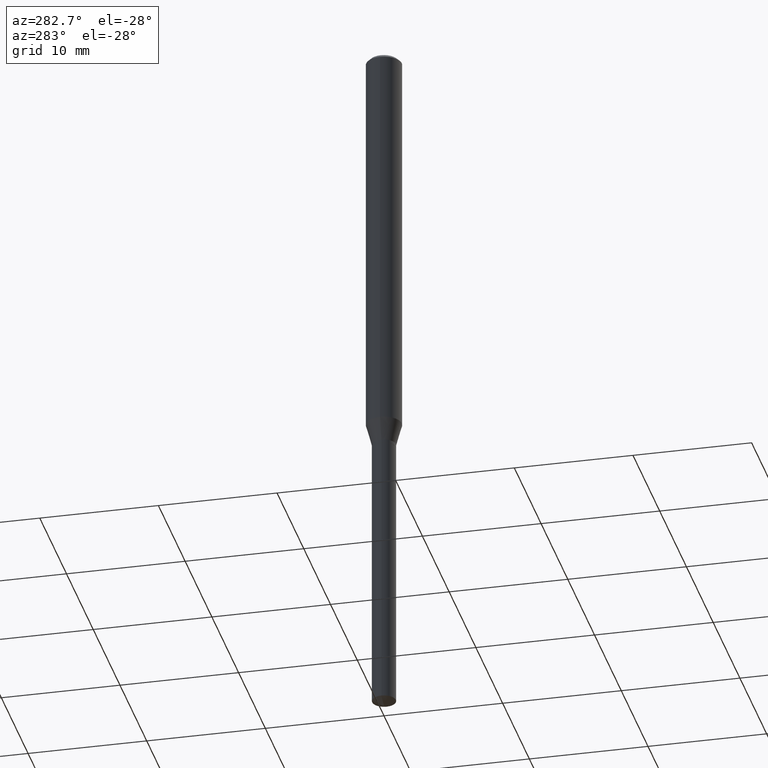
[diagram: clean part render]
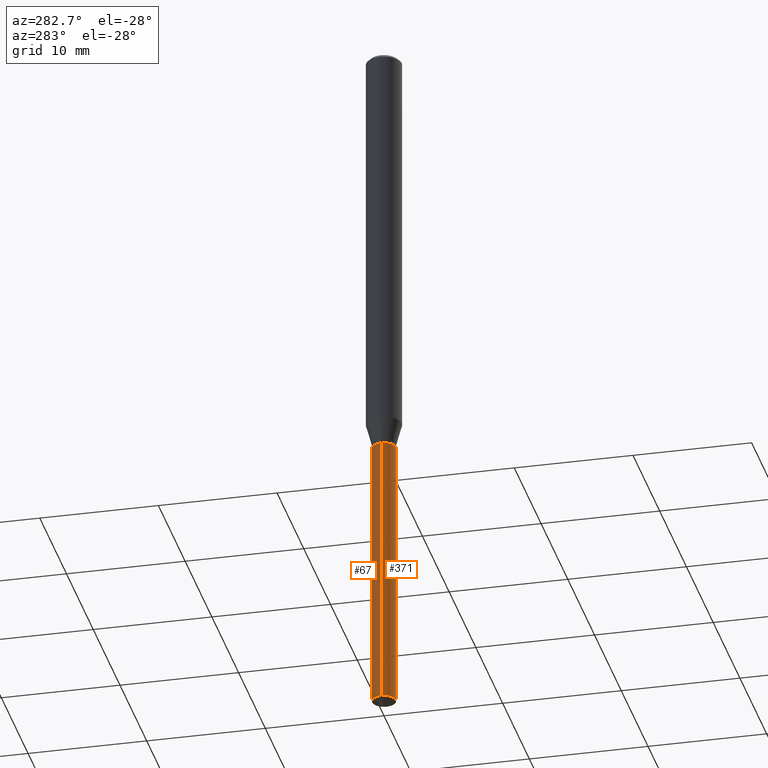
[diagram: same view with one multi-face feature highlighted, each face labeled with its STEP entity id]
A machine part, auxiliary view. The highlighted faces form ONE feature: a constant-radius fillet chain: 2 tangent blend faces with common blend radius 0.9995 mm. The faces share edges in the B-rep.
Their STEP definitions:
[1] entity #67 (Cylinder):
#4 = CARTESIAN_POINT ( 'NONE',  ( 3.465473845244957311E-29, -4.947778205274621841E-15, -1.417100000000000026 ) ) ;
#23 = AXIS2_PLACEMENT_3D ( 'NONE', #253, #64, #325 ) ;
#31 = EDGE_LOOP ( 'NONE', ( #66, #293, #342, #406 ) ) ;
#36 = AXIS2_PLACEMENT_3D ( 'NONE', #4, #337, #305 ) ;
#60 = CARTESIAN_POINT ( 'NONE',  ( 5.731324908466029700E-29, -8.182813010799494343E-15, -2.343650793651601560 ) ) ;
#64 = DIRECTION ( 'NONE',  ( -2.445468806185136597E-29, 3.491481338843145583E-15, 1.000000000000000000 ) ) ;
#66 = ORIENTED_EDGE ( 'NONE', *, *, #473, .T. ) ;
#67 = ADVANCED_FACE ( 'NONE', ( #75 ), #196, .T. ) ;
#71 = CIRCLE ( 'NONE', #359, 0.03935000000000000303 ) ;
#75 = FACE_OUTER_BOUND ( 'NONE', #31, .T. ) ;
#96 = DIRECTION ( 'NONE',  ( -2.445468806185136597E-29, 3.491481338843145583E-15, 1.000000000000000000 ) ) ;
#103 = EDGE_CURVE ( 'NONE', #380, #443, #229, .T. ) ;
#143 = VERTEX_POINT ( 'NONE', #425 ) ;
#175 = DIRECTION ( 'NONE',  ( -2.445468806185136877E-29, 3.491481338843145188E-15, 1.000000000000000000 ) ) ;
#187 = CARTESIAN_POINT ( 'NONE',  ( -0.03935000000000000303, -4.668179638753022446E-15, -1.417100000000000026 ) ) ;
#196 = CYLINDRICAL_SURFACE ( 'NONE', #36, 0.03935000000000000303 ) ;
#229 = CIRCLE ( 'NONE', #23, 0.03935000000000000303 ) ;
#235 = CARTESIAN_POINT ( 'NONE',  ( -0.03935000000000000303, -6.285697041515458697E-15, -1.417100000000000026 ) ) ;
#247 = DIRECTION ( 'NONE',  ( 1.000000000000000000, -6.982962677686269077E-15, 0.000000000000000000 ) ) ;
#253 = CARTESIAN_POINT ( 'NONE',  ( 3.465473845244957311E-29, -4.947778205274621841E-15, -1.417100000000000026 ) ) ;
#265 = VECTOR ( 'NONE', #175, 39.37007874015748143 ) ;
#272 = EDGE_CURVE ( 'NONE', #143, #443, #373, .T. ) ;
#293 = ORIENTED_EDGE ( 'NONE', *, *, #272, .T. ) ;
#305 = DIRECTION ( 'NONE',  ( 1.000000000000000000, -6.982962677686269077E-15, 0.000000000000000000 ) ) ;
#307 = DIRECTION ( 'NONE',  ( -2.445468806185136877E-29, 3.491481338843145188E-15, 1.000000000000000000 ) ) ;
#316 = CARTESIAN_POINT ( 'NONE',  ( 0.03935000000000000303, -5.222557786641576758E-15, -1.417100000000000026 ) ) ;
#320 = VECTOR ( 'NONE', #307, 39.37007874015748143 ) ;
#321 = CARTESIAN_POINT ( 'NONE',  ( 0.03935000000000000997, -8.457592592166449260E-15, -2.343650793651601560 ) ) ;
#325 = DIRECTION ( 'NONE',  ( 1.000000000000000000, -6.982962677686269077E-15, 0.000000000000000000 ) ) ;
#337 = DIRECTION ( 'NONE',  ( -2.445468806185136597E-29, 3.491481338843145583E-15, 1.000000000000000000 ) ) ;
#342 = ORIENTED_EDGE ( 'NONE', *, *, #103, .F. ) ;
#359 = AXIS2_PLACEMENT_3D ( 'NONE', #60, #96, #247 ) ;
#361 = LINE ( 'NONE', #400, #265 ) ;
#373 = LINE ( 'NONE', #187, #320 ) ;
#380 = VERTEX_POINT ( 'NONE', #316 ) ;
#400 = CARTESIAN_POINT ( 'NONE',  ( 0.03935000000000000303, -5.222557786641576758E-15, -1.417100000000000026 ) ) ;
#406 = ORIENTED_EDGE ( 'NONE', *, *, #477, .F. ) ;
#416 = VERTEX_POINT ( 'NONE', #321 ) ;
#425 = CARTESIAN_POINT ( 'NONE',  ( -0.03935000000000000997, -7.903214444277894948E-15, -2.343650793651601560 ) ) ;
#443 = VERTEX_POINT ( 'NONE', #235 ) ;
#473 = EDGE_CURVE ( 'NONE', #416, #143, #71, .T. ) ;
#477 = EDGE_CURVE ( 'NONE', #416, #380, #361, .T. ) ;
[2] entity #371 (Cylinder):
#20 = DIRECTION ( 'NONE',  ( 1.000000000000000000, -6.982962677686269077E-15, 0.000000000000000000 ) ) ;
#42 = AXIS2_PLACEMENT_3D ( 'NONE', #132, #202, #285 ) ;
#69 = ORIENTED_EDGE ( 'NONE', *, *, #335, .T. ) ;
#87 = CARTESIAN_POINT ( 'NONE',  ( 3.465473845244957311E-29, -4.947778205274621841E-15, -1.417100000000000026 ) ) ;
#110 = ORIENTED_EDGE ( 'NONE', *, *, #360, .F. ) ;
#112 = AXIS2_PLACEMENT_3D ( 'NONE', #129, #167, #20 ) ;
#129 = CARTESIAN_POINT ( 'NONE',  ( 5.731324908466029700E-29, -8.182813010799494343E-15, -2.343650793651601560 ) ) ;
#132 = CARTESIAN_POINT ( 'NONE',  ( 3.465473845244957311E-29, -4.947778205274621841E-15, -1.417100000000000026 ) ) ;
#143 = VERTEX_POINT ( 'NONE', #425 ) ;
#158 = DIRECTION ( 'NONE',  ( 1.000000000000000000, -6.982962677686269077E-15, 0.000000000000000000 ) ) ;
#167 = DIRECTION ( 'NONE',  ( -2.445468806185136597E-29, 3.491481338843145583E-15, 1.000000000000000000 ) ) ;
#175 = DIRECTION ( 'NONE',  ( -2.445468806185136877E-29, 3.491481338843145188E-15, 1.000000000000000000 ) ) ;
#186 = ORIENTED_EDGE ( 'NONE', *, *, #477, .T. ) ;
#187 = CARTESIAN_POINT ( 'NONE',  ( -0.03935000000000000303, -4.668179638753022446E-15, -1.417100000000000026 ) ) ;
#202 = DIRECTION ( 'NONE',  ( -2.445468806185136597E-29, 3.491481338843145583E-15, 1.000000000000000000 ) ) ;
#235 = CARTESIAN_POINT ( 'NONE',  ( -0.03935000000000000303, -6.285697041515458697E-15, -1.417100000000000026 ) ) ;
#265 = VECTOR ( 'NONE', #175, 39.37007874015748143 ) ;
#272 = EDGE_CURVE ( 'NONE', #143, #443, #373, .T. ) ;
#275 = FACE_OUTER_BOUND ( 'NONE', #334, .T. ) ;
#285 = DIRECTION ( 'NONE',  ( 1.000000000000000000, -6.982962677686269077E-15, 0.000000000000000000 ) ) ;
#307 = DIRECTION ( 'NONE',  ( -2.445468806185136877E-29, 3.491481338843145188E-15, 1.000000000000000000 ) ) ;
#316 = CARTESIAN_POINT ( 'NONE',  ( 0.03935000000000000303, -5.222557786641576758E-15, -1.417100000000000026 ) ) ;
#320 = VECTOR ( 'NONE', #307, 39.37007874015748143 ) ;
#321 = CARTESIAN_POINT ( 'NONE',  ( 0.03935000000000000997, -8.457592592166449260E-15, -2.343650793651601560 ) ) ;
#334 = EDGE_LOOP ( 'NONE', ( #377, #69, #186, #110 ) ) ;
#335 = EDGE_CURVE ( 'NONE', #143, #416, #348, .T. ) ;
#348 = CIRCLE ( 'NONE', #112, 0.03935000000000000303 ) ;
#360 = EDGE_CURVE ( 'NONE', #443, #380, #441, .T. ) ;
#361 = LINE ( 'NONE', #400, #265 ) ;
#371 = ADVANCED_FACE ( 'NONE', ( #275 ), #391, .T. ) ;
#373 = LINE ( 'NONE', #187, #320 ) ;
#377 = ORIENTED_EDGE ( 'NONE', *, *, #272, .F. ) ;
#380 = VERTEX_POINT ( 'NONE', #316 ) ;
#391 = CYLINDRICAL_SURFACE ( 'NONE', #42, 0.03935000000000000303 ) ;
#400 = CARTESIAN_POINT ( 'NONE',  ( 0.03935000000000000303, -5.222557786641576758E-15, -1.417100000000000026 ) ) ;
#416 = VERTEX_POINT ( 'NONE', #321 ) ;
#425 = CARTESIAN_POINT ( 'NONE',  ( -0.03935000000000000997, -7.903214444277894948E-15, -2.343650793651601560 ) ) ;
#435 = DIRECTION ( 'NONE',  ( -2.445468806185136597E-29, 3.491481338843145583E-15, 1.000000000000000000 ) ) ;
#441 = CIRCLE ( 'NONE', #453, 0.03935000000000000303 ) ;
#443 = VERTEX_POINT ( 'NONE', #235 ) ;
#453 = AXIS2_PLACEMENT_3D ( 'NONE', #87, #435, #158 ) ;
#477 = EDGE_CURVE ( 'NONE', #416, #380, #361, .T. ) ;